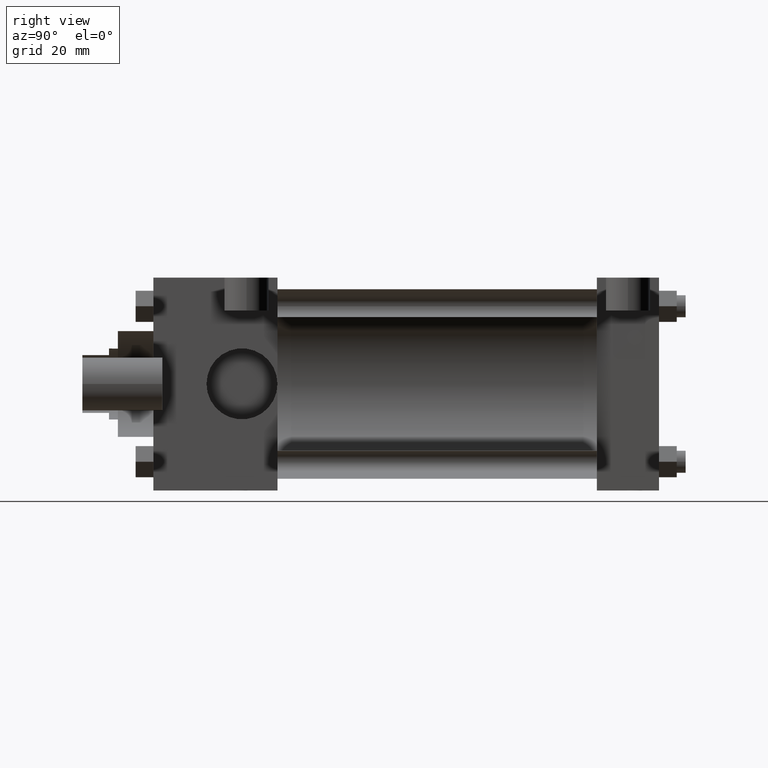
[diagram: clean part render]
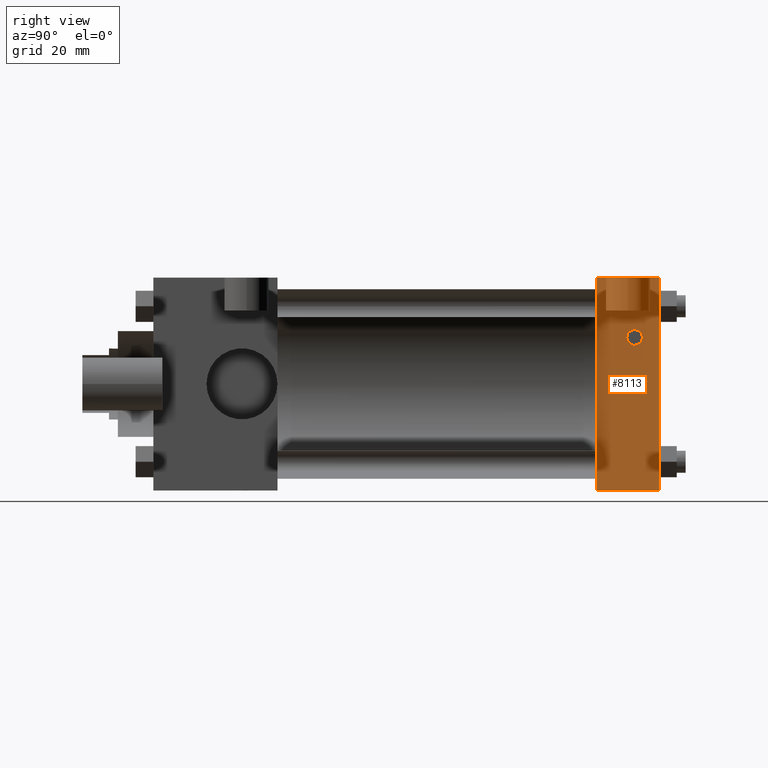
[diagram: same view with one face highlighted and labeled with its STEP entity id]
A machine part, right view. The second image highlights one B-rep face of the part: STEP entity #8113.
In plain terms, the highlighted planar face has unit normal (1, 0, 0).
Its self-contained STEP definition (entity closure, byte-faithful):
#4440=VERTEX_POINT('',#4442);
#4442=CARTESIAN_POINT('',(3.810000000E+001,2.063750000E+002,-3.810000000E+001));
#4455=VERTEX_POINT('',#4456);
#4456=CARTESIAN_POINT('',(3.810000000E+001,2.063750000E+002,3.810000000E+001));
#4457=EDGE_CURVE('',#4440,#4455,#4458,.T.);
#4458=LINE('',#4459,#4460);
#4459=CARTESIAN_POINT('',(3.810000000E+001,2.063750000E+002,-3.810000000E+001));
#4460=VECTOR('',#4461,1.0E+000);
#4461=DIRECTION('',(0.0E+000,0.0E+000,1.0E+000));
#4613=VERTEX_POINT('',#4615);
#4615=CARTESIAN_POINT('',(3.810000000E+001,1.841500000E+002,-3.810000000E+001));
#4616=EDGE_CURVE('',#4613,#4621,#4617,.T.);
#4617=LINE('',#4618,#4619);
#4618=CARTESIAN_POINT('',(3.810000000E+001,1.841500000E+002,-3.810000000E+001));
#4619=VECTOR('',#4620,1.0E+000);
#4620=DIRECTION('',(0.0E+000,0.0E+000,1.0E+000));
#4621=VERTEX_POINT('',#4622);
#4622=CARTESIAN_POINT('',(3.810000000E+001,1.841500000E+002,3.810000000E+001));
#4662=EDGE_CURVE('',#4440,#4613,#4663,.T.);
#4663=LINE('',#4664,#4665);
#4664=CARTESIAN_POINT('',(3.810000000E+001,2.063750000E+002,-3.810000000E+001));
#4665=VECTOR('',#4666,1.0E+000);
#4666=DIRECTION('',(0.0E+000,-1.0E+000,0.0E+000));
#4689=EDGE_CURVE('',#4455,#4621,#4690,.T.);
#4690=LINE('',#4691,#4692);
#4691=CARTESIAN_POINT('',(3.810000000E+001,2.063750000E+002,3.810000000E+001));
#4692=VECTOR('',#4693,1.0E+000);
#4693=DIRECTION('',(0.0E+000,-1.0E+000,0.0E+000));
#4735=FACE_OUTER_BOUND('',#4737,.T.);
#4736=FACE_BOUND('',#4738,.T.);
#4737=EDGE_LOOP('',(#4739,#4740,#4741,#4742));
#4738=EDGE_LOOP('',(#4743));
#4739=ORIENTED_EDGE('',*,*,#4616,.F.);
#4740=ORIENTED_EDGE('',*,*,#4662,.F.);
#4741=ORIENTED_EDGE('',*,*,#4457,.T.);
#4742=ORIENTED_EDGE('',*,*,#4689,.T.);
#4743=ORIENTED_EDGE('',*,*,#4744,.T.);
#4744=EDGE_CURVE('',#4750,#4750,#4745,.T.);
#4745=CIRCLE('',#4746,2.778125000E+000);
#4746=AXIS2_PLACEMENT_3D('',#4747,#4748,#4749);
#4747=CARTESIAN_POINT('',(3.810000000E+001,1.976424800E+002,1.666875000E+001));
#4748=DIRECTION('',(-1.0E+000,0.0E+000,0.0E+000));
#4749=DIRECTION('',(0.0E+000,1.0E+000,0.0E+000));
#4750=VERTEX_POINT('',#4751);
#4751=CARTESIAN_POINT('',(3.810000000E+001,2.004206050E+002,1.666875000E+001));
#4752=PLANE('',#4753);
#4753=AXIS2_PLACEMENT_3D('',#4754,#4755,#4756);
#4754=CARTESIAN_POINT('',(3.810000000E+001,2.063750000E+002,-3.810000000E+001));
#4755=DIRECTION('',(1.0E+000,0.0E+000,0.0E+000));
#4756=DIRECTION('',(0.0E+000,0.0E+000,-1.0E+000));
#8113=ADVANCED_FACE('',(#4735,#4736),#4752,.T.);